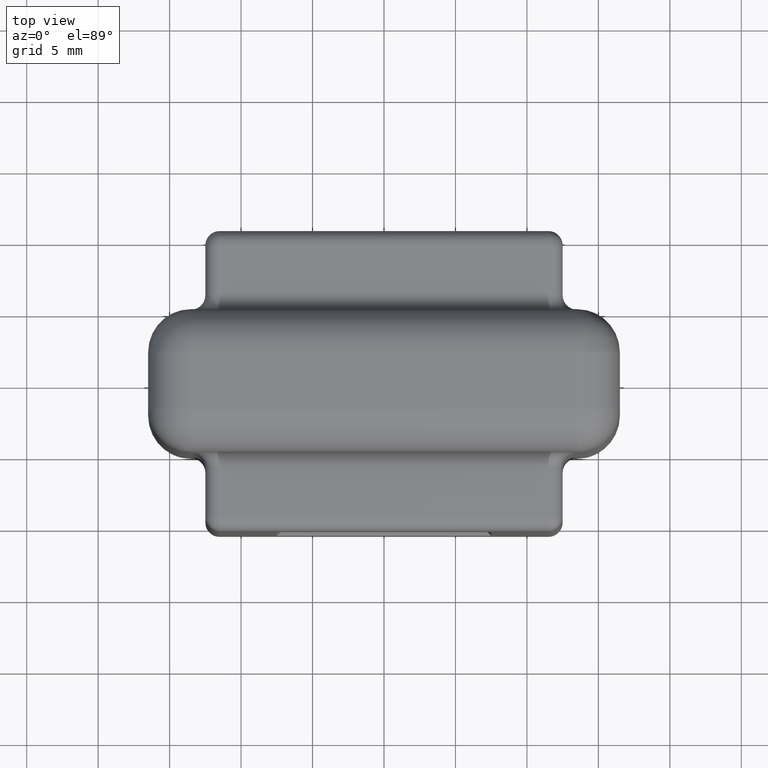
[diagram: clean part render]
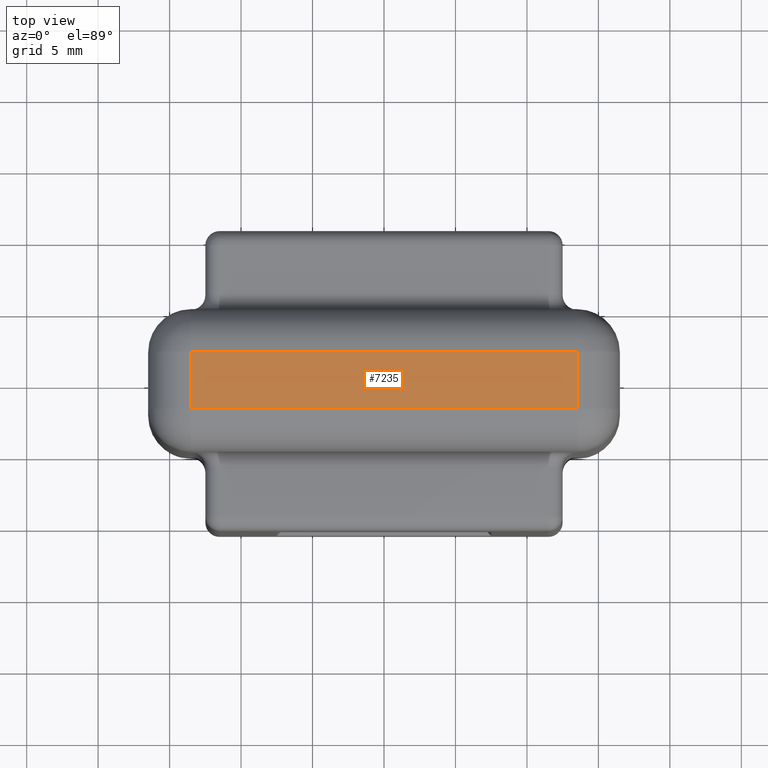
[diagram: same view with one face highlighted and labeled with its STEP entity id]
A machine part, top view. The second image highlights one B-rep face of the part: STEP entity #7235.
In plain terms, the highlighted planar face has unit normal (0, 0, -1).
Its self-contained STEP definition (entity closure, byte-faithful):
#34 = DIRECTION ( 'NONE',  ( 1.000000000000000000, -0.0000000000000000000, 0.0000000000000000000 ) ) ;
#725 = ORIENTED_EDGE ( 'NONE', *, *, #9832, .T. ) ;
#892 = ORIENTED_EDGE ( 'NONE', *, *, #8848, .T. ) ;
#1338 = AXIS2_PLACEMENT_3D ( 'NONE', #4118, #5076, #7758 ) ;
#1986 = FACE_OUTER_BOUND ( 'NONE', #11018, .T. ) ;
#2772 = VECTOR ( 'NONE', #34, 1000.000000000000000 ) ;
#2785 = DIRECTION ( 'NONE',  ( 0.0000000000000000000, -1.000000000000000000, 0.0000000000000000000 ) ) ;
#2883 = CARTESIAN_POINT ( 'NONE',  ( 13.50000000000000500, -2.000000000000000000, 16.50000000000000000 ) ) ;
#3073 = VERTEX_POINT ( 'NONE', #2883 ) ;
#3098 = ORIENTED_EDGE ( 'NONE', *, *, #4193, .T. ) ;
#3391 = VERTEX_POINT ( 'NONE', #4069 ) ;
#3734 = LINE ( 'NONE', #10550, #2772 ) ;
#3757 = VERTEX_POINT ( 'NONE', #9343 ) ;
#3756 = DIRECTION ( 'NONE',  ( -1.000000000000000000, -0.0000000000000000000, -0.0000000000000000000 ) ) ;
#4043 = VERTEX_POINT ( 'NONE', #8148 ) ;
#4069 = CARTESIAN_POINT ( 'NONE',  ( 13.50000000000000500, 2.000000000000000000, 16.50000000000000000 ) ) ;
#4118 = CARTESIAN_POINT ( 'NONE',  ( -16.49999999999999600, 5.000000000000000000, 16.50000000000000000 ) ) ;
#4193 = EDGE_CURVE ( 'NONE', #4043, #3073, #3734, .T. ) ;
#4563 = CARTESIAN_POINT ( 'NONE',  ( -13.49999999999999800, 5.000000000000000000, 16.50000000000000000 ) ) ;
#4763 = CARTESIAN_POINT ( 'NONE',  ( -16.49999999999999600, 2.000000000000000000, 16.50000000000000000 ) ) ;
#5076 = DIRECTION ( 'NONE',  ( 0.0000000000000000000, 0.0000000000000000000, -1.000000000000000000 ) ) ;
#6828 = DIRECTION ( 'NONE',  ( -0.0000000000000000000, 1.000000000000000000, -0.0000000000000000000 ) ) ;
#7235 = ADVANCED_FACE ( 'NONE', ( #1986 ), #7646, .F. ) ;
#7646 = PLANE ( 'NONE',  #1338 ) ;
#7758 = DIRECTION ( 'NONE',  ( -1.000000000000000000, 0.0000000000000000000, -0.0000000000000000000 ) ) ;
#7927 = LINE ( 'NONE', #4563, #10538 ) ;
#8148 = CARTESIAN_POINT ( 'NONE',  ( -13.49999999999999800, -2.000000000000000000, 16.50000000000000000 ) ) ;
#8848 = EDGE_CURVE ( 'NONE', #3073, #3391, #10478, .T. ) ;
#9304 = LINE ( 'NONE', #4763, #9857 ) ;
#9343 = CARTESIAN_POINT ( 'NONE',  ( -13.49999999999999800, 2.000000000000000000, 16.50000000000000000 ) ) ;
#9641 = EDGE_CURVE ( 'NONE', #3391, #3757, #9304, .T. ) ;
#9832 = EDGE_CURVE ( 'NONE', #3757, #4043, #7927, .T. ) ;
#9857 = VECTOR ( 'NONE', #3756, 1000.000000000000000 ) ;
#10387 = ORIENTED_EDGE ( 'NONE', *, *, #9641, .T. ) ;
#10478 = LINE ( 'NONE', #10501, #10752 ) ;
#10501 = CARTESIAN_POINT ( 'NONE',  ( 13.50000000000000500, 5.000000000000000000, 16.50000000000000000 ) ) ;
#10538 = VECTOR ( 'NONE', #2785, 1000.000000000000000 ) ;
#10550 = CARTESIAN_POINT ( 'NONE',  ( -16.49999999999999600, -2.000000000000000000, 16.50000000000000000 ) ) ;
#10752 = VECTOR ( 'NONE', #6828, 1000.000000000000000 ) ;
#11018 = EDGE_LOOP ( 'NONE', ( #10387, #725, #3098, #892 ) ) ;